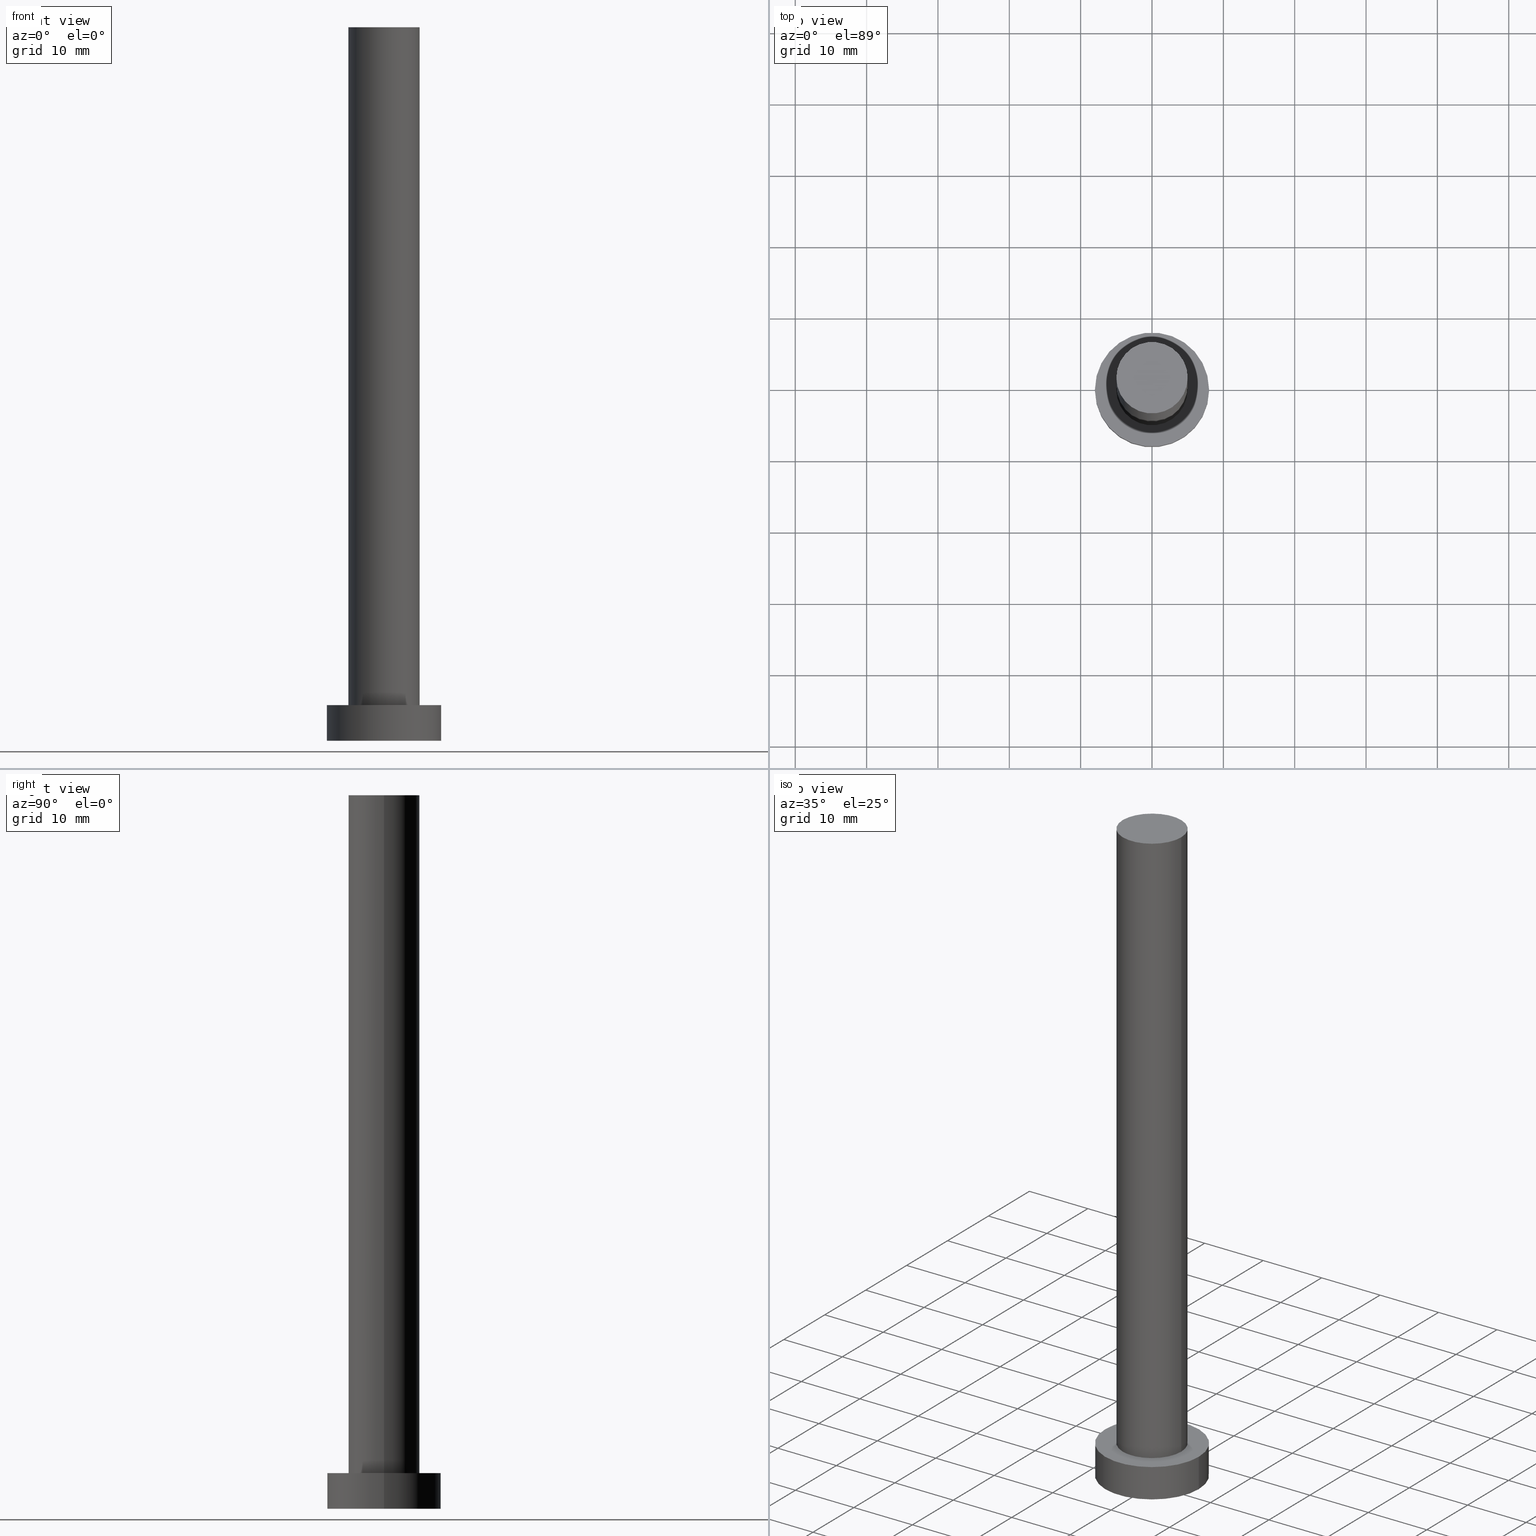
[diagram: canonical four-view strip — front | top / right | iso, engineering-drawing reading convention]
A machine part, canonical four-view strip (front | top / right | iso — engineering-drawing reading convention). The complete STEP part file that produces these views, byte-faithful:
ISO-10303-21;
HEADER;
FILE_DESCRIPTION (( 'STEP AP203' ),
    '1' );
FILE_NAME ('0d15.STEP',
    '2023-02-13T13:50:34',
    ( '' ),
    ( '' ),
    'SwSTEP 2.0',
    'SolidWorks 2019',
    '' );
FILE_SCHEMA (( 'CONFIG_CONTROL_DESIGN' ));
ENDSEC;

DATA;
#1 =( NAMED_UNIT ( * ) PLANE_ANGLE_UNIT ( ) SI_UNIT ( $, .RADIAN. ) );
#2 = LINE ( 'NONE', #89, #175 ) ;
#3 = AXIS2_PLACEMENT_3D ( 'NONE', #147, #12, #86 ) ;
#4 = ADVANCED_BREP_SHAPE_REPRESENTATION ( '0d15', ( #186, #254 ), #212 ) ;
#5 = CARTESIAN_POINT ( 'NONE',  ( -8.000000000000000000, 0.000000000000000000, 5.000000000000000000 ) ) ;
#6 =( LENGTH_UNIT ( ) NAMED_UNIT ( * ) SI_UNIT ( .MILLI., .METRE. ) );
#7 = DIRECTION ( 'NONE',  ( 1.000000000000000000, 0.000000000000000000, -0.000000000000000000 ) ) ;
#8 = EDGE_CURVE ( 'NONE', #253, #158, #197, .T. ) ;
#9 = COORDINATED_UNIVERSAL_TIME_OFFSET ( 1, 0, .AHEAD. ) ;
#10 = FACE_OUTER_BOUND ( 'NONE', #41, .T. ) ;
#11 = DATE_AND_TIME ( #124, #178 ) ;
#12 = DIRECTION ( 'NONE',  ( -0.000000000000000000, -0.000000000000000000, -1.000000000000000000 ) ) ;
#13 = SECURITY_CLASSIFICATION ( '', '', #224 ) ;
#14 = CALENDAR_DATE ( 2023, 13, 2 ) ;
#15 = DATE_TIME_ROLE ( 'classification_date' ) ;
#16 = CC_DESIGN_PERSON_AND_ORGANIZATION_ASSIGNMENT ( #30, #111, ( #90 ) ) ;
#17 = AXIS2_PLACEMENT_3D ( 'NONE', #19, #130, #56 ) ;
#18 = EDGE_CURVE ( 'NONE', #102, #76, #247, .T. ) ;
#19 = CARTESIAN_POINT ( 'NONE',  ( 0.000000000000000000, 0.000000000000000000, 5.000000000000000000 ) ) ;
#20 = EDGE_LOOP ( 'NONE', ( #228, #255 ) ) ;
#21 = CC_DESIGN_DATE_AND_TIME_ASSIGNMENT ( #33, #190, ( #142 ) ) ;
#22 = AXIS2_PLACEMENT_3D ( 'NONE', #164, #189, #150 ) ;
#23 = LINE ( 'NONE', #67, #151 ) ;
#24 = DIRECTION ( 'NONE',  ( 1.000000000000000000, 0.000000000000000000, 0.000000000000000000 ) ) ;
#25 = CARTESIAN_POINT ( 'NONE',  ( 0.000000000000000000, 0.000000000000000000, 100.0000000000000000 ) ) ;
#26 = ORGANIZATION ( 'NEUR�EN�', 'NEUR�EN�', '' ) ;
#27 = APPROVAL_STATUS ( 'not_yet_approved' ) ;
#28 = DIRECTION ( 'NONE',  ( 0.000000000000000000, 0.000000000000000000, 1.000000000000000000 ) ) ;
#29 = AXIS2_PLACEMENT_3D ( 'NONE', #221, #244, #47 ) ;
#30 = PERSON_AND_ORGANIZATION ( #72, #26 ) ;
#31 = AXIS2_PLACEMENT_3D ( 'NONE', #141, #80, #60 ) ;
#32 = DIRECTION ( 'NONE',  ( 1.000000000000000000, 0.000000000000000000, 0.000000000000000000 ) ) ;
#33 = DATE_AND_TIME ( #55, #201 ) ;
#34 = CIRCLE ( 'NONE', #78, 8.000000000000000000 ) ;
#35 = PLANE ( 'NONE',  #121 ) ;
#36 = CARTESIAN_POINT ( 'NONE',  ( 0.000000000000000000, 0.000000000000000000, 100.0000000000000000 ) ) ;
#37 = ORIENTED_EDGE ( 'NONE', *, *, #225, .F. ) ;
#38 = EDGE_LOOP ( 'NONE', ( #162, #171 ) ) ;
#39 = ORIENTED_EDGE ( 'NONE', *, *, #216, .T. ) ;
#40 = MECHANICAL_CONTEXT ( 'NONE', #95, 'mechanical' ) ;
#41 = EDGE_LOOP ( 'NONE', ( #214, #77, #101, #202 ) ) ;
#42 = VERTEX_POINT ( 'NONE', #137 ) ;
#43 = EDGE_CURVE ( 'NONE', #102, #57, #119, .T. ) ;
#44 = VECTOR ( 'NONE', #75, 1000.000000000000000 ) ;
#45 = DIRECTION ( 'NONE',  ( 1.000000000000000000, 0.000000000000000000, 0.000000000000000000 ) ) ;
#46 = ADVANCED_FACE ( 'NONE', ( #123 ), #53, .F. ) ;
#47 = DIRECTION ( 'NONE',  ( 1.000000000000000000, 0.000000000000000000, 0.000000000000000000 ) ) ;
#48 = CLOSED_SHELL ( 'NONE', ( #106, #61, #252, #229, #46, #120, #236 ) ) ;
#49 = PERSON_AND_ORGANIZATION_ROLE ( 'design_supplier' ) ;
#50 = CARTESIAN_POINT ( 'NONE',  ( 0.000000000000000000, 0.000000000000000000, 100.0000000000000000 ) ) ;
#51 = CARTESIAN_POINT ( 'NONE',  ( 8.000000000000000000, 9.797174393178825657E-16, 0.000000000000000000 ) ) ;
#52 = PERSON_AND_ORGANIZATION_ROLE ( 'classification_officer' ) ;
#53 = PLANE ( 'NONE',  #96 ) ;
#54 = APPROVAL_ROLE ( '' ) ;
#55 = CALENDAR_DATE ( 2023, 13, 2 ) ;
#56 = DIRECTION ( 'NONE',  ( 1.000000000000000000, 0.000000000000000000, 0.000000000000000000 ) ) ;
#57 = VERTEX_POINT ( 'NONE', #182 ) ;
#58 = AXIS2_PLACEMENT_3D ( 'NONE', #166, #28, #242 ) ;
#59 = CARTESIAN_POINT ( 'NONE',  ( 0.000000000000000000, 0.000000000000000000, 5.000000000000000000 ) ) ;
#60 = DIRECTION ( 'NONE',  ( 1.000000000000000000, 0.000000000000000000, 0.000000000000000000 ) ) ;
#61 = ADVANCED_FACE ( 'NONE', ( #70 ), #219, .T. ) ;
#62 = DESIGN_CONTEXT ( 'detailed design', #215, 'design' ) ;
#63 = CARTESIAN_POINT ( 'NONE',  ( 0.000000000000000000, 0.000000000000000000, 0.000000000000000000 ) ) ;
#64 =( NAMED_UNIT ( * ) SI_UNIT ( $, .STERADIAN. ) SOLID_ANGLE_UNIT ( ) );
#65 = CC_DESIGN_APPROVAL ( #132, ( #13 ) ) ;
#66 = CARTESIAN_POINT ( 'NONE',  ( 0.000000000000000000, 0.000000000000000000, 5.000000000000000000 ) ) ;
#67 = CARTESIAN_POINT ( 'NONE',  ( 8.000000000000000000, 9.797174393178825657E-16, 5.000000000000000000 ) ) ;
#68 = DIRECTION ( 'NONE',  ( 1.000000000000000000, 0.000000000000000000, 0.000000000000000000 ) ) ;
#69 = APPROVAL_ROLE ( '' ) ;
#70 = FACE_OUTER_BOUND ( 'NONE', #251, .T. ) ;
#71 = CARTESIAN_POINT ( 'NONE',  ( -8.000000000000000000, 0.000000000000000000, 5.000000000000000000 ) ) ;
#72 = PERSON ( 'NEUR�EN�', 'NEUR�EN�', 'NEUR�EN�', ('NEUR�EN�'), ('NEUR�EN�'), ('NEUR�EN�') ) ;
#73 = EDGE_CURVE ( 'NONE', #181, #57, #128, .T. ) ;
#74 = EDGE_LOOP ( 'NONE', ( #155, #177, #249, #98 ) ) ;
#75 = DIRECTION ( 'NONE',  ( -0.000000000000000000, -0.000000000000000000, -1.000000000000000000 ) ) ;
#76 = VERTEX_POINT ( 'NONE', #205 ) ;
#77 = ORIENTED_EDGE ( 'NONE', *, *, #8, .F. ) ;
#78 = AXIS2_PLACEMENT_3D ( 'NONE', #59, #246, #32 ) ;
#79 = FACE_OUTER_BOUND ( 'NONE', #20, .T. ) ;
#80 = DIRECTION ( 'NONE',  ( 0.000000000000000000, 0.000000000000000000, 1.000000000000000000 ) ) ;
#81 = VECTOR ( 'NONE', #122, 1000.000000000000000 ) ;
#82 = CC_DESIGN_PERSON_AND_ORGANIZATION_ASSIGNMENT ( #109, #129, ( #142 ) ) ;
#83 = PERSON_AND_ORGANIZATION ( #72, #26 ) ;
#84 = FACE_OUTER_BOUND ( 'NONE', #153, .T. ) ;
#85 = DIRECTION ( 'NONE',  ( 0.000000000000000000, 0.000000000000000000, 1.000000000000000000 ) ) ;
#86 = DIRECTION ( 'NONE',  ( -1.000000000000000000, 0.000000000000000000, 0.000000000000000000 ) ) ;
#87 = DATE_AND_TIME ( #222, #143 ) ;
#88 = CARTESIAN_POINT ( 'NONE',  ( 5.000000000000000000, 6.123233995736766282E-16, 100.0000000000000000 ) ) ;
#89 = CARTESIAN_POINT ( 'NONE',  ( -5.000000000000000000, 0.000000000000000000, 100.0000000000000000 ) ) ;
#90 = PRODUCT_DEFINITION_FORMATION_WITH_SPECIFIED_SOURCE ( 'LIBOVOLN�', '', #108, .NOT_KNOWN. ) ;
#91 = APPROVAL_DATE_TIME ( #11, #132 ) ;
#92 = CARTESIAN_POINT ( 'NONE',  ( 5.000000000000000000, 6.123233995736766282E-16, 5.000000000000000000 ) ) ;
#93 = APPROVAL_STATUS ( 'not_yet_approved' ) ;
#94 = LINE ( 'NONE', #170, #44 ) ;
#95 = APPLICATION_CONTEXT ( 'configuration controlled 3d designs of mechanical parts and assemblies' ) ;
#96 = AXIS2_PLACEMENT_3D ( 'NONE', #226, #85, #7 ) ;
#97 = PRODUCT_DEFINITION_SHAPE ( 'NONE', 'NONE',  #142 ) ;
#98 = ORIENTED_EDGE ( 'NONE', *, *, #172, .T. ) ;
#99 = PRODUCT_RELATED_PRODUCT_CATEGORY ( 'detail', '', ( #108 ) ) ;
#100 = CYLINDRICAL_SURFACE ( 'NONE', #192, 8.000000000000000000 ) ;
#101 = ORIENTED_EDGE ( 'NONE', *, *, #103, .T. ) ;
#102 = VERTEX_POINT ( 'NONE', #71 ) ;
#103 = EDGE_CURVE ( 'NONE', #253, #42, #2, .T. ) ;
#104 = CARTESIAN_POINT ( 'NONE',  ( 0.000000000000000000, 0.000000000000000000, 100.0000000000000000 ) ) ;
#105 = PERSON_AND_ORGANIZATION_ROLE ( 'design_owner' ) ;
#106 = ADVANCED_FACE ( 'NONE', ( #84 ), #208, .T. ) ;
#107 = CYLINDRICAL_SURFACE ( 'NONE', #3, 5.000000000000000000 ) ;
#108 = PRODUCT ( '0d15', '0d15', '', ( #40 ) ) ;
#109 = PERSON_AND_ORGANIZATION ( #72, #26 ) ;
#110 = COORDINATED_UNIVERSAL_TIME_OFFSET ( 1, 0, .AHEAD. ) ;
#111 = PERSON_AND_ORGANIZATION_ROLE ( 'creator' ) ;
#112 = CARTESIAN_POINT ( 'NONE',  ( 0.000000000000000000, 0.000000000000000000, 5.000000000000000000 ) ) ;
#113 = SHAPE_DEFINITION_REPRESENTATION ( #97, #4 ) ;
#114 = ORIENTED_EDGE ( 'NONE', *, *, #203, .F. ) ;
#115 = CIRCLE ( 'NONE', #17, 5.000000000000000000 ) ;
#116 = DIRECTION ( 'NONE',  ( 1.000000000000000000, 0.000000000000000000, -0.000000000000000000 ) ) ;
#117 = CC_DESIGN_PERSON_AND_ORGANIZATION_ASSIGNMENT ( #83, #105, ( #108 ) ) ;
#118 = CARTESIAN_POINT ( 'NONE',  ( 0.000000000000000000, 0.000000000000000000, 5.000000000000000000 ) ) ;
#119 = LINE ( 'NONE', #5, #81 ) ;
#120 = ADVANCED_FACE ( 'NONE', ( #10 ), #107, .T. ) ;
#121 = AXIS2_PLACEMENT_3D ( 'NONE', #112, #152, #116 ) ;
#122 = DIRECTION ( 'NONE',  ( -0.000000000000000000, -0.000000000000000000, -1.000000000000000000 ) ) ;
#123 = FACE_OUTER_BOUND ( 'NONE', #238, .T. ) ;
#124 = CALENDAR_DATE ( 2023, 13, 2 ) ;
#125 = EDGE_CURVE ( 'NONE', #76, #181, #23, .T. ) ;
#126 = DIRECTION ( 'NONE',  ( -1.000000000000000000, 0.000000000000000000, 0.000000000000000000 ) ) ;
#127 = APPROVAL_DATE_TIME ( #240, #211 ) ;
#128 = CIRCLE ( 'NONE', #29, 8.000000000000000000 ) ;
#129 = PERSON_AND_ORGANIZATION_ROLE ( 'creator' ) ;
#130 = DIRECTION ( 'NONE',  ( 0.000000000000000000, 0.000000000000000000, 1.000000000000000000 ) ) ;
#131 = APPROVAL_PERSON_ORGANIZATION ( #133, #132, #69 ) ;
#132 = APPROVAL ( #27, 'NEUR�EN�' ) ;
#133 = PERSON_AND_ORGANIZATION ( #72, #26 ) ;
#134 = EDGE_CURVE ( 'NONE', #158, #253, #183, .T. ) ;
#135 = CIRCLE ( 'NONE', #139, 5.000000000000000000 ) ;
#136 = FACE_BOUND ( 'NONE', #235, .T. ) ;
#137 = CARTESIAN_POINT ( 'NONE',  ( -5.000000000000000000, 0.000000000000000000, 5.000000000000000000 ) ) ;
#138 = AXIS2_PLACEMENT_3D ( 'NONE', #25, #187, #68 ) ;
#139 = AXIS2_PLACEMENT_3D ( 'NONE', #66, #144, #45 ) ;
#140 = APPLICATION_PROTOCOL_DEFINITION ( 'international standard', 'config_control_design', 1994, #95 ) ;
#141 = CARTESIAN_POINT ( 'NONE',  ( 0.000000000000000000, 0.000000000000000000, 5.000000000000000000 ) ) ;
#142 = PRODUCT_DEFINITION ( 'NEZN�M�', '', #90, #62 ) ;
#143 = LOCAL_TIME ( 14, 50, 34.00000000000000000, #146 ) ;
#144 = DIRECTION ( 'NONE',  ( 0.000000000000000000, 0.000000000000000000, 1.000000000000000000 ) ) ;
#145 = DIRECTION ( 'NONE',  ( -0.000000000000000000, -0.000000000000000000, -1.000000000000000000 ) ) ;
#146 = COORDINATED_UNIVERSAL_TIME_OFFSET ( 1, 0, .AHEAD. ) ;
#147 = CARTESIAN_POINT ( 'NONE',  ( 0.000000000000000000, 0.000000000000000000, 100.0000000000000000 ) ) ;
#148 = CIRCLE ( 'NONE', #58, 8.000000000000000000 ) ;
#149 = PERSON_AND_ORGANIZATION ( #72, #26 ) ;
#150 = DIRECTION ( 'NONE',  ( -1.000000000000000000, 0.000000000000000000, 0.000000000000000000 ) ) ;
#151 = VECTOR ( 'NONE', #145, 1000.000000000000000 ) ;
#152 = DIRECTION ( 'NONE',  ( 0.000000000000000000, 0.000000000000000000, 1.000000000000000000 ) ) ;
#153 = EDGE_LOOP ( 'NONE', ( #250, #39, #231, #173 ) ) ;
#154 = FACE_OUTER_BOUND ( 'NONE', #38, .T. ) ;
#155 = ORIENTED_EDGE ( 'NONE', *, *, #125, .F. ) ;
#156 = CC_DESIGN_APPROVAL ( #233, ( #142 ) ) ;
#157 = DIRECTION ( 'NONE',  ( 0.000000000000000000, 0.000000000000000000, 1.000000000000000000 ) ) ;
#158 = VERTEX_POINT ( 'NONE', #88 ) ;
#159 = UNCERTAINTY_MEASURE_WITH_UNIT (LENGTH_MEASURE( 1.000000000000000082E-05 ), #6, 'distance_accuracy_value', 'NONE');
#160 = LOCAL_TIME ( 14, 50, 34.00000000000000000, #227 ) ;
#161 = APPLICATION_PROTOCOL_DEFINITION ( 'international standard', 'config_control_design', 1994, #215 ) ;
#162 = ORIENTED_EDGE ( 'NONE', *, *, #18, .T. ) ;
#163 = LOCAL_TIME ( 14, 50, 34.00000000000000000, #9 ) ;
#164 = CARTESIAN_POINT ( 'NONE',  ( 0.000000000000000000, 0.000000000000000000, 5.000000000000000000 ) ) ;
#165 = CARTESIAN_POINT ( 'NONE',  ( -5.000000000000000000, 0.000000000000000000, 100.0000000000000000 ) ) ;
#166 = CARTESIAN_POINT ( 'NONE',  ( 0.000000000000000000, 0.000000000000000000, 0.000000000000000000 ) ) ;
#167 = APPROVAL_PERSON_ORGANIZATION ( #169, #233, #191 ) ;
#168 = PERSON_AND_ORGANIZATION ( #72, #26 ) ;
#169 = PERSON_AND_ORGANIZATION ( #72, #26 ) ;
#170 = CARTESIAN_POINT ( 'NONE',  ( 5.000000000000000000, 6.123233995736766282E-16, 100.0000000000000000 ) ) ;
#171 = ORIENTED_EDGE ( 'NONE', *, *, #203, .T. ) ;
#172 = EDGE_CURVE ( 'NONE', #57, #181, #148, .T. ) ;
#173 = ORIENTED_EDGE ( 'NONE', *, *, #103, .F. ) ;
#174 = ORIENTED_EDGE ( 'NONE', *, *, #73, .T. ) ;
#175 = VECTOR ( 'NONE', #184, 1000.000000000000000 ) ;
#176 = PLANE ( 'NONE',  #243 ) ;
#177 = ORIENTED_EDGE ( 'NONE', *, *, #18, .F. ) ;
#178 = LOCAL_TIME ( 14, 50, 34.00000000000000000, #245 ) ;
#179 = CC_DESIGN_DATE_AND_TIME_ASSIGNMENT ( #87, #15, ( #13 ) ) ;
#180 = ORIENTED_EDGE ( 'NONE', *, *, #43, .F. ) ;
#181 = VERTEX_POINT ( 'NONE', #51 ) ;
#182 = CARTESIAN_POINT ( 'NONE',  ( -8.000000000000000000, 0.000000000000000000, 0.000000000000000000 ) ) ;
#183 = CIRCLE ( 'NONE', #138, 5.000000000000000000 ) ;
#184 = DIRECTION ( 'NONE',  ( -0.000000000000000000, -0.000000000000000000, -1.000000000000000000 ) ) ;
#185 = APPROVAL_PERSON_ORGANIZATION ( #149, #211, #54 ) ;
#186 = MANIFOLD_SOLID_BREP ( 'P�idat vysunut�m3', #48 ) ;
#187 = DIRECTION ( 'NONE',  ( 0.000000000000000000, 0.000000000000000000, 1.000000000000000000 ) ) ;
#188 = PERSON_AND_ORGANIZATION ( #72, #26 ) ;
#189 = DIRECTION ( 'NONE',  ( -0.000000000000000000, -0.000000000000000000, -1.000000000000000000 ) ) ;
#190 = DATE_TIME_ROLE ( 'creation_date' ) ;
#191 = APPROVAL_ROLE ( '' ) ;
#192 = AXIS2_PLACEMENT_3D ( 'NONE', #118, #195, #126 ) ;
#193 = APPROVAL_STATUS ( 'not_yet_approved' ) ;
#194 = EDGE_CURVE ( 'NONE', #196, #42, #135, .T. ) ;
#195 = DIRECTION ( 'NONE',  ( -0.000000000000000000, -0.000000000000000000, -1.000000000000000000 ) ) ;
#196 = VERTEX_POINT ( 'NONE', #92 ) ;
#197 = CIRCLE ( 'NONE', #241, 5.000000000000000000 ) ;
#198 = DIRECTION ( 'NONE',  ( 0.000000000000000000, 0.000000000000000000, 1.000000000000000000 ) ) ;
#199 = ORIENTED_EDGE ( 'NONE', *, *, #73, .F. ) ;
#200 = CC_DESIGN_PERSON_AND_ORGANIZATION_ASSIGNMENT ( #168, #49, ( #90 ) ) ;
#201 = LOCAL_TIME ( 14, 50, 34.00000000000000000, #110 ) ;
#202 = ORIENTED_EDGE ( 'NONE', *, *, #225, .T. ) ;
#203 = EDGE_CURVE ( 'NONE', #76, #102, #34, .T. ) ;
#204 = DIRECTION ( 'NONE',  ( -0.000000000000000000, -0.000000000000000000, -1.000000000000000000 ) ) ;
#205 = CARTESIAN_POINT ( 'NONE',  ( 8.000000000000000000, 9.797174393178825657E-16, 5.000000000000000000 ) ) ;
#206 = DIRECTION ( 'NONE',  ( -1.000000000000000000, 0.000000000000000000, 0.000000000000000000 ) ) ;
#207 = DATE_AND_TIME ( #14, #163 ) ;
#208 = CYLINDRICAL_SURFACE ( 'NONE', #223, 5.000000000000000000 ) ;
#209 = APPROVAL_DATE_TIME ( #207, #233 ) ;
#210 = ORIENTED_EDGE ( 'NONE', *, *, #194, .F. ) ;
#211 = APPROVAL ( #193, 'NEUR�EN�' ) ;
#212 =( GEOMETRIC_REPRESENTATION_CONTEXT ( 3 ) GLOBAL_UNCERTAINTY_ASSIGNED_CONTEXT ( ( #159 ) ) GLOBAL_UNIT_ASSIGNED_CONTEXT ( ( #6, #1, #64 ) ) REPRESENTATION_CONTEXT ( 'NONE', 'WORKASPACE' ) );
#213 = FACE_OUTER_BOUND ( 'NONE', #74, .T. ) ;
#214 = ORIENTED_EDGE ( 'NONE', *, *, #216, .F. ) ;
#215 = APPLICATION_CONTEXT ( 'configuration controlled 3d designs of mechanical parts and assemblies' ) ;
#216 = EDGE_CURVE ( 'NONE', #158, #196, #94, .T. ) ;
#217 = ORIENTED_EDGE ( 'NONE', *, *, #172, .F. ) ;
#218 = DIRECTION ( 'NONE',  ( 1.000000000000000000, 0.000000000000000000, 0.000000000000000000 ) ) ;
#219 = CYLINDRICAL_SURFACE ( 'NONE', #22, 8.000000000000000000 ) ;
#220 = CC_DESIGN_PERSON_AND_ORGANIZATION_ASSIGNMENT ( #188, #52, ( #13 ) ) ;
#221 = CARTESIAN_POINT ( 'NONE',  ( 0.000000000000000000, 0.000000000000000000, 0.000000000000000000 ) ) ;
#222 = CALENDAR_DATE ( 2023, 13, 2 ) ;
#223 = AXIS2_PLACEMENT_3D ( 'NONE', #50, #204, #206 ) ;
#224 = SECURITY_CLASSIFICATION_LEVEL ( 'unclassified' ) ;
#225 = EDGE_CURVE ( 'NONE', #42, #196, #115, .T. ) ;
#226 = CARTESIAN_POINT ( 'NONE',  ( 0.000000000000000000, 0.000000000000000000, 0.000000000000000000 ) ) ;
#227 = COORDINATED_UNIVERSAL_TIME_OFFSET ( 1, 0, .AHEAD. ) ;
#228 = ORIENTED_EDGE ( 'NONE', *, *, #8, .T. ) ;
#229 = ADVANCED_FACE ( 'NONE', ( #136, #154 ), #35, .T. ) ;
#230 = CALENDAR_DATE ( 2023, 13, 2 ) ;
#231 = ORIENTED_EDGE ( 'NONE', *, *, #194, .T. ) ;
#232 = CC_DESIGN_APPROVAL ( #211, ( #90 ) ) ;
#233 = APPROVAL ( #93, 'NEUR�EN�' ) ;
#234 = DIRECTION ( 'NONE',  ( 1.000000000000000000, 0.000000000000000000, -0.000000000000000000 ) ) ;
#235 = EDGE_LOOP ( 'NONE', ( #37, #210 ) ) ;
#236 = ADVANCED_FACE ( 'NONE', ( #79 ), #176, .T. ) ;
#237 = DIRECTION ( 'NONE',  ( 0.000000000000000000, 0.000000000000000000, 1.000000000000000000 ) ) ;
#238 = EDGE_LOOP ( 'NONE', ( #217, #199 ) ) ;
#239 = CC_DESIGN_SECURITY_CLASSIFICATION ( #13, ( #90 ) ) ;
#240 = DATE_AND_TIME ( #230, #160 ) ;
#241 = AXIS2_PLACEMENT_3D ( 'NONE', #104, #237, #218 ) ;
#242 = DIRECTION ( 'NONE',  ( 1.000000000000000000, 0.000000000000000000, 0.000000000000000000 ) ) ;
#243 = AXIS2_PLACEMENT_3D ( 'NONE', #36, #157, #234 ) ;
#244 = DIRECTION ( 'NONE',  ( 0.000000000000000000, 0.000000000000000000, 1.000000000000000000 ) ) ;
#245 = COORDINATED_UNIVERSAL_TIME_OFFSET ( 1, 0, .AHEAD. ) ;
#246 = DIRECTION ( 'NONE',  ( 0.000000000000000000, 0.000000000000000000, 1.000000000000000000 ) ) ;
#247 = CIRCLE ( 'NONE', #31, 8.000000000000000000 ) ;
#248 = ORIENTED_EDGE ( 'NONE', *, *, #125, .T. ) ;
#249 = ORIENTED_EDGE ( 'NONE', *, *, #43, .T. ) ;
#250 = ORIENTED_EDGE ( 'NONE', *, *, #134, .F. ) ;
#251 = EDGE_LOOP ( 'NONE', ( #114, #248, #174, #180 ) ) ;
#252 = ADVANCED_FACE ( 'NONE', ( #213 ), #100, .T. ) ;
#253 = VERTEX_POINT ( 'NONE', #165 ) ;
#254 = AXIS2_PLACEMENT_3D ( 'NONE', #63, #198, #24 ) ;
#255 = ORIENTED_EDGE ( 'NONE', *, *, #134, .T. ) ;
ENDSEC;
END-ISO-10303-21;
